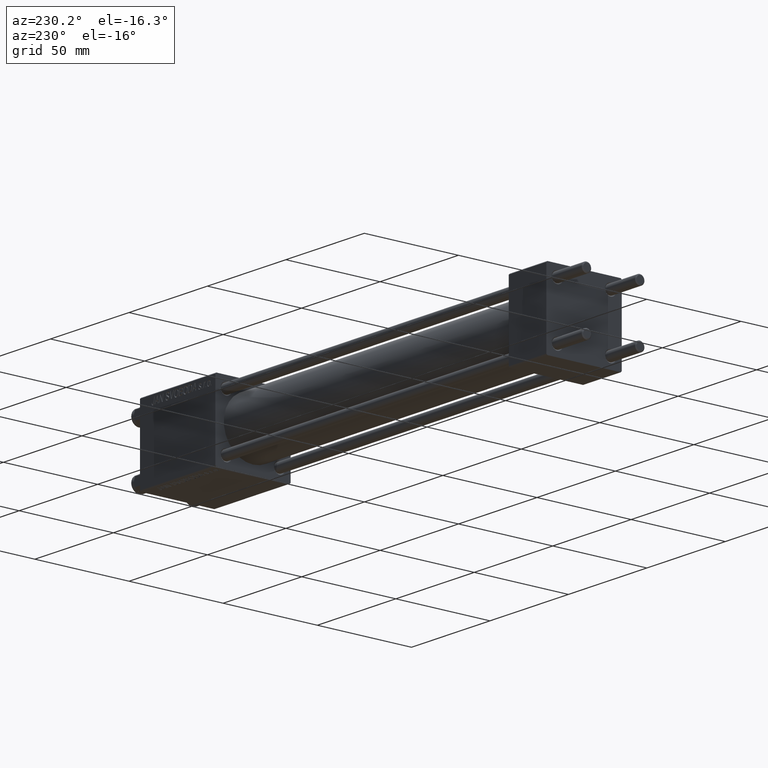
[diagram: clean part render]
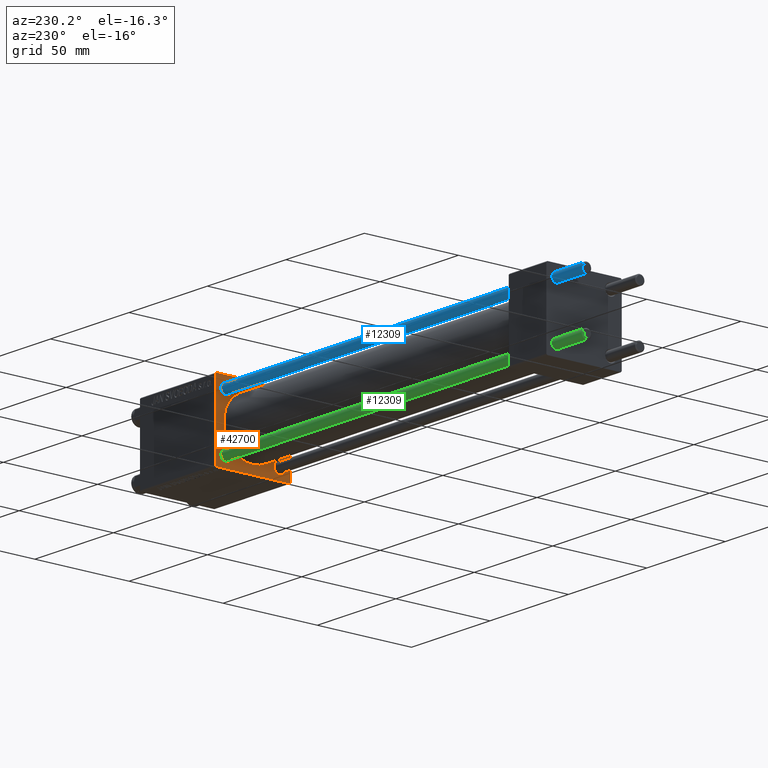
[diagram: same view with three faces highlighted in distinct colors, each labeled with its STEP entity id]
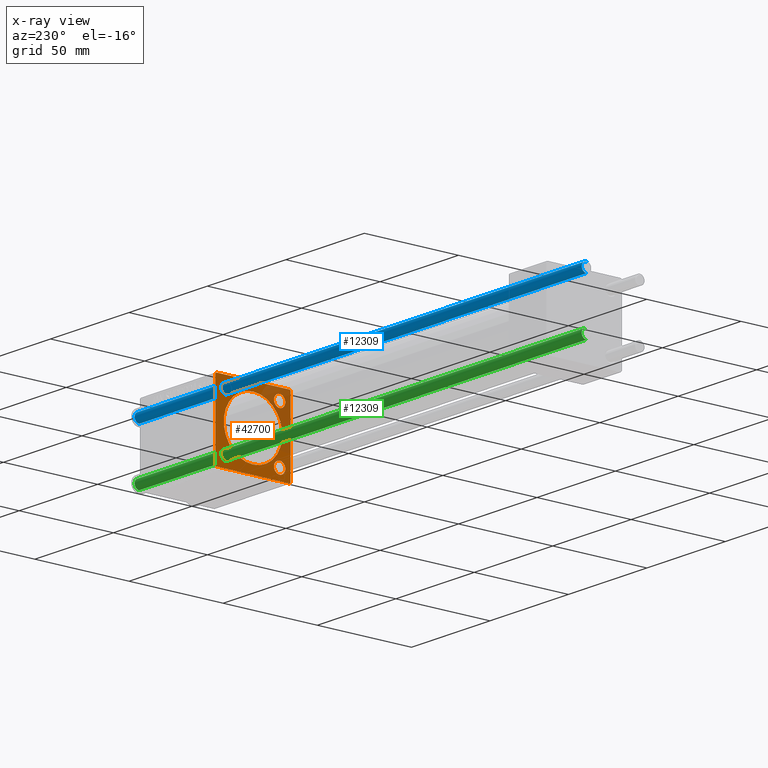
[diagram: x-ray of the same camera — body ghosted, the three highlighted faces saturated]
A machine part, auxiliary view with three faces highlighted in distinct colors.
The next image is the same camera in x-ray (body ghosted, the three faces saturated) — at least one of them is partly hidden behind the body in this view.
Their STEP definitions:

[orange] entity #42700 — the highlighted planar face has unit normal (-1, 0, 0).
#241 = FACE_BOUND ( 'NONE', #48953, .T. ) ;
#822 = AXIS2_PLACEMENT_3D ( 'NONE', #37249, #17123, #36993 ) ;
#1218 = VERTEX_POINT ( 'NONE', #31697 ) ;
#1277 = CARTESIAN_POINT ( 'NONE',  ( 211.0000000000000000, -14.15000000000000036, 11.14999999999999858 ) ) ;
#1498 = EDGE_CURVE ( 'NONE', #9778, #25819, #34802, .T. ) ;
#2190 = DIRECTION ( 'NONE',  ( 0.000000000000000000, 0.000000000000000000, 1.000000000000000000 ) ) ;
#3527 = AXIS2_PLACEMENT_3D ( 'NONE', #48251, #5707, #2190 ) ;
#3549 = VERTEX_POINT ( 'NONE', #24150 ) ;
#3607 = LINE ( 'NONE', #15188, #10791 ) ;
#4021 = FACE_BOUND ( 'NONE', #33837, .T. ) ;
#4215 = CARTESIAN_POINT ( 'NONE',  ( 211.0000000000000000, 14.15000000000000036, -14.15000000000000036 ) ) ;
#4791 = EDGE_CURVE ( 'NONE', #25819, #9778, #40400, .T. ) ;
#4995 = VERTEX_POINT ( 'NONE', #41679 ) ;
#5117 = VERTEX_POINT ( 'NONE', #12453 ) ;
#5204 = DIRECTION ( 'NONE',  ( -0.000000000000000000, 0.7071067811865671127, 0.7071067811865279218 ) ) ;
#5509 = CARTESIAN_POINT ( 'NONE',  ( 211.0000000000000000, 0.000000000000000000, 0.000000000000000000 ) ) ;
#5594 = AXIS2_PLACEMENT_3D ( 'NONE', #48466, #39913, #17513 ) ;
#5680 = LINE ( 'NONE', #39685, #26701 ) ;
#5707 = DIRECTION ( 'NONE',  ( 1.000000000000000000, 0.000000000000000000, 0.000000000000000000 ) ) ;
#6035 = DIRECTION ( 'NONE',  ( 0.000000000000000000, 0.000000000000000000, -1.000000000000000000 ) ) ;
#6157 = VERTEX_POINT ( 'NONE', #34476 ) ;
#6385 = ORIENTED_EDGE ( 'NONE', *, *, #21001, .T. ) ;
#6414 = EDGE_CURVE ( 'NONE', #25331, #1218, #19599, .T. ) ;
#6754 = CARTESIAN_POINT ( 'NONE',  ( 211.0000000000000000, 19.99999999999999645, -20.00000000000000000 ) ) ;
#7328 = EDGE_CURVE ( 'NONE', #35195, #37710, #35683, .T. ) ;
#7490 = ORIENTED_EDGE ( 'NONE', *, *, #7328, .T. ) ;
#7855 = CARTESIAN_POINT ( 'NONE',  ( 211.0000000000000000, 0.000000000000000000, 15.50000000000000000 ) ) ;
#8046 = VERTEX_POINT ( 'NONE', #1277 ) ;
#8045 = DIRECTION ( 'NONE',  ( -0.000000000000000000, 0.000000000000000000, 1.000000000000000000 ) ) ;
#8172 = ORIENTED_EDGE ( 'NONE', *, *, #31081, .T. ) ;
#8949 = EDGE_CURVE ( 'NONE', #23052, #49018, #18055, .T. ) ;
#9138 = CARTESIAN_POINT ( 'NONE',  ( 211.0000000000000000, -20.00000000000000355, 19.50000000000002487 ) ) ;
#9778 = VERTEX_POINT ( 'NONE', #34666 ) ;
#9930 = CARTESIAN_POINT ( 'NONE',  ( 211.0000000000000000, 14.15000000000000036, -11.15000000000002522 ) ) ;
#10111 = CARTESIAN_POINT ( 'NONE',  ( 211.0000000000000000, 14.15000000000000036, 17.15000000000000568 ) ) ;
#10791 = VECTOR ( 'NONE', #30298, 1000.000000000000000 ) ;
#11277 = CARTESIAN_POINT ( 'NONE',  ( 211.0000000000000000, -14.15000000000000036, -17.14999999999997726 ) ) ;
#11469 = VECTOR ( 'NONE', #26162, 1000.000000000000114 ) ;
#11826 = CARTESIAN_POINT ( 'NONE',  ( 211.0000000000000000, 0.000000000000000000, 0.000000000000000000 ) ) ;
#11831 = ORIENTED_EDGE ( 'NONE', *, *, #39362, .T. ) ;
#12357 = VECTOR ( 'NONE', #20183, 1000.000000000000000 ) ;
#12386 = CIRCLE ( 'NONE', #17204, 15.50000000000000000 ) ;
#12453 = CARTESIAN_POINT ( 'NONE',  ( 211.0000000000000000, -14.15000000000000036, 17.15000000000000568 ) ) ;
#12721 = VERTEX_POINT ( 'NONE', #9138 ) ;
#12840 = DIRECTION ( 'NONE',  ( 1.000000000000000000, 0.000000000000000000, 0.000000000000000000 ) ) ;
#13471 = CARTESIAN_POINT ( 'NONE',  ( 211.0000000000000000, -14.15000000000000036, -14.15000000000000036 ) ) ;
#13505 = DIRECTION ( 'NONE',  ( 0.000000000000000000, 0.000000000000000000, 1.000000000000000000 ) ) ;
#13725 = VECTOR ( 'NONE', #18946, 1000.000000000000000 ) ;
#13949 = EDGE_CURVE ( 'NONE', #8046, #5117, #25746, .T. ) ;
#14068 = ORIENTED_EDGE ( 'NONE', *, *, #28299, .T. ) ;
#14823 = DIRECTION ( 'NONE',  ( 0.000000000000000000, 0.000000000000000000, 1.000000000000000000 ) ) ;
#15188 = CARTESIAN_POINT ( 'NONE',  ( 211.0000000000000000, 19.99999999999999645, 20.00000000000000000 ) ) ;
#15612 = FACE_OUTER_BOUND ( 'NONE', #16776, .T. ) ;
#15791 = ORIENTED_EDGE ( 'NONE', *, *, #46874, .T. ) ;
#16033 = ORIENTED_EDGE ( 'NONE', *, *, #30023, .T. ) ;
#16154 = CARTESIAN_POINT ( 'NONE',  ( 211.0000000000000000, -20.00000000000000355, 19.99999999999999645 ) ) ;
#16169 = CARTESIAN_POINT ( 'NONE',  ( 211.0000000000000000, 19.99999999999999645, 19.50000000000000000 ) ) ;
#16500 = VECTOR ( 'NONE', #23132, 1000.000000000000000 ) ;
#16683 = EDGE_CURVE ( 'NONE', #12721, #3549, #38069, .T. ) ;
#16776 = EDGE_LOOP ( 'NONE', ( #8172, #45239, #45324, #15791, #31747, #6385, #42146, #37532 ) ) ;
#17123 = DIRECTION ( 'NONE',  ( 1.000000000000000000, 0.000000000000000000, 0.000000000000000000 ) ) ;
#17204 = AXIS2_PLACEMENT_3D ( 'NONE', #5509, #21812, #32190 ) ;
#17513 = DIRECTION ( 'NONE',  ( 0.000000000000000000, 0.000000000000000000, 1.000000000000000000 ) ) ;
#17616 = CARTESIAN_POINT ( 'NONE',  ( 211.0000000000000000, -19.75000000000055067, -19.74999999999945288 ) ) ;
#18055 = CIRCLE ( 'NONE', #46198, 2.999999999999976463 ) ;
#18946 = DIRECTION ( 'NONE',  ( 0.000000000000000000, 8.673617379884036705E-17, -1.000000000000000000 ) ) ;
#19381 = FACE_BOUND ( 'NONE', #26771, .T. ) ;
#19599 = CIRCLE ( 'NONE', #3527, 3.000000000000004441 ) ;
#19707 = EDGE_CURVE ( 'NONE', #4995, #26430, #20941, .T. ) ;
#20183 = DIRECTION ( 'NONE',  ( 0.000000000000000000, -1.000000000000000000, -8.673617379884035472E-17 ) ) ;
#20880 = DIRECTION ( 'NONE',  ( 0.000000000000000000, 0.000000000000000000, 1.000000000000000000 ) ) ;
#20941 = LINE ( 'NONE', #47387, #25115 ) ;
#21001 = EDGE_CURVE ( 'NONE', #6157, #30556, #40980, .T. ) ;
#21307 = CARTESIAN_POINT ( 'NONE',  ( 211.0000000000000000, 1.898202538678397557E-15, -15.50000000000000000 ) ) ;
#21522 = DIRECTION ( 'NONE',  ( 0.000000000000000000, 0.000000000000000000, 1.000000000000000000 ) ) ;
#21812 = DIRECTION ( 'NONE',  ( 1.000000000000000000, 0.000000000000000000, 0.000000000000000000 ) ) ;
#21866 = CARTESIAN_POINT ( 'NONE',  ( 211.0000000000000000, 19.74999999999999645, 19.74999999999999645 ) ) ;
#22137 = CARTESIAN_POINT ( 'NONE',  ( 211.0000000000000000, 14.15000000000000036, -14.15000000000000036 ) ) ;
#23052 = VERTEX_POINT ( 'NONE', #11277 ) ;
#23132 = DIRECTION ( 'NONE',  ( 0.000000000000000000, -1.000000000000000000, 0.000000000000000000 ) ) ;
#23178 = FACE_BOUND ( 'NONE', #33088, .T. ) ;
#23298 = ORIENTED_EDGE ( 'NONE', *, *, #1498, .T. ) ;
#23743 = EDGE_CURVE ( 'NONE', #6157, #42839, #24707, .T. ) ;
#24150 = CARTESIAN_POINT ( 'NONE',  ( 211.0000000000000000, -20.00000000000000000, -19.49999999999999645 ) ) ;
#24471 = AXIS2_PLACEMENT_3D ( 'NONE', #47325, #12840, #20880 ) ;
#24682 = ORIENTED_EDGE ( 'NONE', *, *, #13949, .T. ) ;
#24707 = LINE ( 'NONE', #47124, #12357 ) ;
#24897 = AXIS2_PLACEMENT_3D ( 'NONE', #11826, #27194, #8045 ) ;
#25051 = ORIENTED_EDGE ( 'NONE', *, *, #4791, .T. ) ;
#25115 = VECTOR ( 'NONE', #40569, 1000.000000000000114 ) ;
#25331 = VERTEX_POINT ( 'NONE', #10111 ) ;
#25474 = ORIENTED_EDGE ( 'NONE', *, *, #6414, .T. ) ;
#25746 = CIRCLE ( 'NONE', #822, 3.000000000000004441 ) ;
#25819 = VERTEX_POINT ( 'NONE', #9930 ) ;
#25958 = AXIS2_PLACEMENT_3D ( 'NONE', #22137, #45272, #14823 ) ;
#26108 = CIRCLE ( 'NONE', #24471, 3.000000000000004441 ) ;
#26162 = DIRECTION ( 'NONE',  ( 0.000000000000000000, 0.7071067811865474617, -0.7071067811865474617 ) ) ;
#26430 = VERTEX_POINT ( 'NONE', #31237 ) ;
#26701 = VECTOR ( 'NONE', #5204, 1000.000000000000000 ) ;
#26771 = EDGE_LOOP ( 'NONE', ( #25051, #23298 ) ) ;
#27194 = DIRECTION ( 'NONE',  ( -1.000000000000000000, 0.000000000000000000, -0.000000000000000000 ) ) ;
#27918 = EDGE_CURVE ( 'NONE', #30556, #4995, #3607, .T. ) ;
#28299 = EDGE_CURVE ( 'NONE', #37710, #35195, #12386, .T. ) ;
#29210 = CARTESIAN_POINT ( 'NONE',  ( 211.0000000000000000, -19.50000000000002487, -20.00000000000000000 ) ) ;
#29727 = CIRCLE ( 'NONE', #5594, 3.000000000000004441 ) ;
#30023 = EDGE_CURVE ( 'NONE', #5117, #8046, #26108, .T. ) ;
#30298 = DIRECTION ( 'NONE',  ( 0.000000000000000000, 0.000000000000000000, -1.000000000000000000 ) ) ;
#30556 = VERTEX_POINT ( 'NONE', #16169 ) ;
#30655 = DIRECTION ( 'NONE',  ( 1.000000000000000000, 0.000000000000000000, 0.000000000000000000 ) ) ;
#30962 = PLANE ( 'NONE',  #24897 ) ;
#31081 = EDGE_CURVE ( 'NONE', #26430, #42637, #41492, .T. ) ;
#31237 = CARTESIAN_POINT ( 'NONE',  ( 211.0000000000000000, 19.49999999999999645, -20.00000000000000000 ) ) ;
#31697 = CARTESIAN_POINT ( 'NONE',  ( 211.0000000000000000, 14.15000000000000036, 11.14999999999999858 ) ) ;
#31747 = ORIENTED_EDGE ( 'NONE', *, *, #23743, .F. ) ;
#32190 = DIRECTION ( 'NONE',  ( 0.000000000000000000, 0.000000000000000000, -1.000000000000000000 ) ) ;
#32963 = DIRECTION ( 'NONE',  ( 1.000000000000000000, 0.000000000000000000, 0.000000000000000000 ) ) ;
#33088 = EDGE_LOOP ( 'NONE', ( #16033, #24682 ) ) ;
#33398 = EDGE_LOOP ( 'NONE', ( #11831, #48079 ) ) ;
#33837 = EDGE_LOOP ( 'NONE', ( #25474, #45676 ) ) ;
#34476 = CARTESIAN_POINT ( 'NONE',  ( 211.0000000000000000, 19.49999999999999645, 20.00000000000000000 ) ) ;
#34666 = CARTESIAN_POINT ( 'NONE',  ( 211.0000000000000000, 14.15000000000000036, -17.14999999999997726 ) ) ;
#34737 = FACE_BOUND ( 'NONE', #33398, .T. ) ;
#34802 = CIRCLE ( 'NONE', #41217, 2.999999999999976463 ) ;
#35195 = VERTEX_POINT ( 'NONE', #21307 ) ;
#35683 = CIRCLE ( 'NONE', #38144, 15.50000000000000000 ) ;
#36749 = LINE ( 'NONE', #17616, #48856 ) ;
#36870 = DIRECTION ( 'NONE',  ( 1.000000000000000000, 0.000000000000000000, 0.000000000000000000 ) ) ;
#36993 = DIRECTION ( 'NONE',  ( 0.000000000000000000, 0.000000000000000000, 1.000000000000000000 ) ) ;
#37249 = CARTESIAN_POINT ( 'NONE',  ( 211.0000000000000000, -14.15000000000000036, 14.15000000000000036 ) ) ;
#37532 = ORIENTED_EDGE ( 'NONE', *, *, #19707, .T. ) ;
#37710 = VERTEX_POINT ( 'NONE', #7855 ) ;
#38069 = LINE ( 'NONE', #16154, #13725 ) ;
#38144 = AXIS2_PLACEMENT_3D ( 'NONE', #44809, #32963, #6035 ) ;
#39193 = DIRECTION ( 'NONE',  ( 0.000000000000000000, 0.000000000000000000, 1.000000000000000000 ) ) ;
#39272 = DIRECTION ( 'NONE',  ( 1.000000000000000000, 0.000000000000000000, 0.000000000000000000 ) ) ;
#39362 = EDGE_CURVE ( 'NONE', #49018, #23052, #44798, .T. ) ;
#39685 = CARTESIAN_POINT ( 'NONE',  ( 211.0000000000000000, -19.74999999999945999, 19.75000000000055067 ) ) ;
#39727 = CARTESIAN_POINT ( 'NONE',  ( 211.0000000000000000, -19.50000000000000355, 19.99999999999999645 ) ) ;
#39913 = DIRECTION ( 'NONE',  ( 1.000000000000000000, 0.000000000000000000, 0.000000000000000000 ) ) ;
#40400 = CIRCLE ( 'NONE', #25958, 2.999999999999976463 ) ;
#40569 = DIRECTION ( 'NONE',  ( -0.000000000000000000, -0.7071067811865474617, -0.7071067811865474617 ) ) ;
#40980 = LINE ( 'NONE', #21866, #11469 ) ;
#41217 = AXIS2_PLACEMENT_3D ( 'NONE', #4215, #30655, #39193 ) ;
#41492 = LINE ( 'NONE', #6754, #16500 ) ;
#41679 = CARTESIAN_POINT ( 'NONE',  ( 211.0000000000000000, 19.99999999999999645, -19.50000000000000000 ) ) ;
#41753 = EDGE_CURVE ( 'NONE', #42637, #3549, #36749, .T. ) ;
#42146 = ORIENTED_EDGE ( 'NONE', *, *, #27918, .T. ) ;
#42637 = VERTEX_POINT ( 'NONE', #29210 ) ;
#42700 = ADVANCED_FACE ( 'NONE', ( #23178, #4021, #19381, #34737, #241, #15612 ), #30962, .T. ) ;
#42839 = VERTEX_POINT ( 'NONE', #39727 ) ;
#42995 = CARTESIAN_POINT ( 'NONE',  ( 211.0000000000000000, -14.15000000000000036, -11.15000000000002522 ) ) ;
#43166 = EDGE_CURVE ( 'NONE', #1218, #25331, #29727, .T. ) ;
#43284 = AXIS2_PLACEMENT_3D ( 'NONE', #47985, #39272, #13505 ) ;
#44798 = CIRCLE ( 'NONE', #43284, 2.999999999999976463 ) ;
#44809 = CARTESIAN_POINT ( 'NONE',  ( 211.0000000000000000, 0.000000000000000000, 0.000000000000000000 ) ) ;
#45239 = ORIENTED_EDGE ( 'NONE', *, *, #41753, .T. ) ;
#45272 = DIRECTION ( 'NONE',  ( 1.000000000000000000, 0.000000000000000000, 0.000000000000000000 ) ) ;
#45324 = ORIENTED_EDGE ( 'NONE', *, *, #16683, .F. ) ;
#45676 = ORIENTED_EDGE ( 'NONE', *, *, #43166, .T. ) ;
#46198 = AXIS2_PLACEMENT_3D ( 'NONE', #13471, #36870, #21522 ) ;
#46874 = EDGE_CURVE ( 'NONE', #12721, #42839, #5680, .T. ) ;
#47124 = CARTESIAN_POINT ( 'NONE',  ( 211.0000000000000000, 19.99999999999999645, 20.00000000000000000 ) ) ;
#47325 = CARTESIAN_POINT ( 'NONE',  ( 211.0000000000000000, -14.15000000000000036, 14.15000000000000036 ) ) ;
#47387 = CARTESIAN_POINT ( 'NONE',  ( 211.0000000000000000, 19.74999999999999645, -19.74999999999999645 ) ) ;
#47985 = CARTESIAN_POINT ( 'NONE',  ( 211.0000000000000000, -14.15000000000000036, -14.15000000000000036 ) ) ;
#48079 = ORIENTED_EDGE ( 'NONE', *, *, #8949, .T. ) ;
#48251 = CARTESIAN_POINT ( 'NONE',  ( 211.0000000000000000, 14.15000000000000036, 14.15000000000000036 ) ) ;
#48466 = CARTESIAN_POINT ( 'NONE',  ( 211.0000000000000000, 14.15000000000000036, 14.15000000000000036 ) ) ;
#48583 = DIRECTION ( 'NONE',  ( 0.000000000000000000, -0.7071067811865279218, 0.7071067811865672237 ) ) ;
#48856 = VECTOR ( 'NONE', #48583, 1000.000000000000000 ) ;
#48953 = EDGE_LOOP ( 'NONE', ( #14068, #7490 ) ) ;
#49018 = VERTEX_POINT ( 'NONE', #42995 ) ;

[blue] entity #12309 — the highlighted cylindrical surface (edge-blend (fillet) strip) has radius 2.5 mm, axis along (-1, -0, -0).
#621 = VERTEX_POINT ( 'NONE', #40967 ) ;
#1771 = AXIS2_PLACEMENT_3D ( 'NONE', #11341, #30223, #34502 ) ;
#2359 = DIRECTION ( 'NONE',  ( -0.000000000000000000, -0.000000000000000000, -1.000000000000000000 ) ) ;
#3408 = CIRCLE ( 'NONE', #1771, 2.500000000000000000 ) ;
#5148 = CARTESIAN_POINT ( 'NONE',  ( -2.500000000000000000, 0.000000000000000000, 285.4999999999999432 ) ) ;
#5395 = LINE ( 'NONE', #35871, #42263 ) ;
#8809 = ORIENTED_EDGE ( 'NONE', *, *, #23359, .F. ) ;
#9440 = CARTESIAN_POINT ( 'NONE',  ( 0.000000000000000000, 0.000000000000000000, 286.0000000000000000 ) ) ;
#11341 = CARTESIAN_POINT ( 'NONE',  ( 0.000000000000000000, 0.000000000000000000, 285.4999999999999432 ) ) ;
#12309 = ADVANCED_FACE ( 'NONE', ( #30873 ), #15036, .T. ) ;
#13760 = DIRECTION ( 'NONE',  ( 1.000000000000000000, 0.000000000000000000, 0.000000000000000000 ) ) ;
#15036 = CYLINDRICAL_SURFACE ( 'NONE', #31021, 2.500000000000000000 ) ;
#16986 = DIRECTION ( 'NONE',  ( -0.000000000000000000, -0.000000000000000000, -1.000000000000000000 ) ) ;
#17291 = CARTESIAN_POINT ( 'NONE',  ( 0.000000000000000000, 0.000000000000000000, 0.4999999999999449329 ) ) ;
#19023 = CARTESIAN_POINT ( 'NONE',  ( -2.500000000000000000, 0.000000000000000000, 286.0000000000000000 ) ) ;
#19431 = EDGE_CURVE ( 'NONE', #23522, #30827, #31510, .T. ) ;
#20126 = EDGE_CURVE ( 'NONE', #21430, #621, #3408, .T. ) ;
#21054 = DIRECTION ( 'NONE',  ( -0.000000000000000000, -0.000000000000000000, 1.000000000000000000 ) ) ;
#21430 = VERTEX_POINT ( 'NONE', #5148 ) ;
#23359 = EDGE_CURVE ( 'NONE', #21430, #30827, #30347, .T. ) ;
#23522 = VERTEX_POINT ( 'NONE', #28290 ) ;
#28290 = CARTESIAN_POINT ( 'NONE',  ( 2.500000000000000000, 3.061616997868383141E-16, 0.4999999999999449329 ) ) ;
#28319 = DIRECTION ( 'NONE',  ( -1.000000000000000000, 0.000000000000000000, 0.000000000000000000 ) ) ;
#28760 = EDGE_LOOP ( 'NONE', ( #41001, #45307, #48458, #8809 ) ) ;
#30223 = DIRECTION ( 'NONE',  ( 0.000000000000000000, 0.000000000000000000, -1.000000000000000000 ) ) ;
#30347 = LINE ( 'NONE', #19023, #45318 ) ;
#30827 = VERTEX_POINT ( 'NONE', #34748 ) ;
#30873 = FACE_OUTER_BOUND ( 'NONE', #28760, .T. ) ;
#31021 = AXIS2_PLACEMENT_3D ( 'NONE', #9440, #16986, #28319 ) ;
#31510 = CIRCLE ( 'NONE', #44362, 2.500000000000000000 ) ;
#32225 = EDGE_CURVE ( 'NONE', #621, #23522, #5395, .T. ) ;
#34378 = DIRECTION ( 'NONE',  ( -0.000000000000000000, -0.000000000000000000, -1.000000000000000000 ) ) ;
#34502 = DIRECTION ( 'NONE',  ( 1.000000000000000000, 0.000000000000000000, 0.000000000000000000 ) ) ;
#34748 = CARTESIAN_POINT ( 'NONE',  ( -2.500000000000000000, 0.000000000000000000, 0.4999999999999449329 ) ) ;
#35871 = CARTESIAN_POINT ( 'NONE',  ( 2.500000000000000000, 3.061616997868383141E-16, 286.0000000000000000 ) ) ;
#40967 = CARTESIAN_POINT ( 'NONE',  ( 2.500000000000000000, 3.061616997868383141E-16, 285.4999999999999432 ) ) ;
#41001 = ORIENTED_EDGE ( 'NONE', *, *, #20126, .T. ) ;
#42263 = VECTOR ( 'NONE', #2359, 1000.000000000000000 ) ;
#44362 = AXIS2_PLACEMENT_3D ( 'NONE', #17291, #21054, #13760 ) ;
#45307 = ORIENTED_EDGE ( 'NONE', *, *, #32225, .T. ) ;
#45318 = VECTOR ( 'NONE', #34378, 1000.000000000000000 ) ;
#48458 = ORIENTED_EDGE ( 'NONE', *, *, #19431, .T. ) ;

[green] entity #12309 — the highlighted cylindrical surface (edge-blend (fillet) strip) has radius 2.5 mm, axis along (1, 0, -0).
#621 = VERTEX_POINT ( 'NONE', #40967 ) ;
#1771 = AXIS2_PLACEMENT_3D ( 'NONE', #11341, #30223, #34502 ) ;
#2359 = DIRECTION ( 'NONE',  ( -0.000000000000000000, -0.000000000000000000, -1.000000000000000000 ) ) ;
#3408 = CIRCLE ( 'NONE', #1771, 2.500000000000000000 ) ;
#5148 = CARTESIAN_POINT ( 'NONE',  ( -2.500000000000000000, 0.000000000000000000, 285.4999999999999432 ) ) ;
#5395 = LINE ( 'NONE', #35871, #42263 ) ;
#8809 = ORIENTED_EDGE ( 'NONE', *, *, #23359, .F. ) ;
#9440 = CARTESIAN_POINT ( 'NONE',  ( 0.000000000000000000, 0.000000000000000000, 286.0000000000000000 ) ) ;
#11341 = CARTESIAN_POINT ( 'NONE',  ( 0.000000000000000000, 0.000000000000000000, 285.4999999999999432 ) ) ;
#12309 = ADVANCED_FACE ( 'NONE', ( #30873 ), #15036, .T. ) ;
#13760 = DIRECTION ( 'NONE',  ( 1.000000000000000000, 0.000000000000000000, 0.000000000000000000 ) ) ;
#15036 = CYLINDRICAL_SURFACE ( 'NONE', #31021, 2.500000000000000000 ) ;
#16986 = DIRECTION ( 'NONE',  ( -0.000000000000000000, -0.000000000000000000, -1.000000000000000000 ) ) ;
#17291 = CARTESIAN_POINT ( 'NONE',  ( 0.000000000000000000, 0.000000000000000000, 0.4999999999999449329 ) ) ;
#19023 = CARTESIAN_POINT ( 'NONE',  ( -2.500000000000000000, 0.000000000000000000, 286.0000000000000000 ) ) ;
#19431 = EDGE_CURVE ( 'NONE', #23522, #30827, #31510, .T. ) ;
#20126 = EDGE_CURVE ( 'NONE', #21430, #621, #3408, .T. ) ;
#21054 = DIRECTION ( 'NONE',  ( -0.000000000000000000, -0.000000000000000000, 1.000000000000000000 ) ) ;
#21430 = VERTEX_POINT ( 'NONE', #5148 ) ;
#23359 = EDGE_CURVE ( 'NONE', #21430, #30827, #30347, .T. ) ;
#23522 = VERTEX_POINT ( 'NONE', #28290 ) ;
#28290 = CARTESIAN_POINT ( 'NONE',  ( 2.500000000000000000, 3.061616997868383141E-16, 0.4999999999999449329 ) ) ;
#28319 = DIRECTION ( 'NONE',  ( -1.000000000000000000, 0.000000000000000000, 0.000000000000000000 ) ) ;
#28760 = EDGE_LOOP ( 'NONE', ( #41001, #45307, #48458, #8809 ) ) ;
#30223 = DIRECTION ( 'NONE',  ( 0.000000000000000000, 0.000000000000000000, -1.000000000000000000 ) ) ;
#30347 = LINE ( 'NONE', #19023, #45318 ) ;
#30827 = VERTEX_POINT ( 'NONE', #34748 ) ;
#30873 = FACE_OUTER_BOUND ( 'NONE', #28760, .T. ) ;
#31021 = AXIS2_PLACEMENT_3D ( 'NONE', #9440, #16986, #28319 ) ;
#31510 = CIRCLE ( 'NONE', #44362, 2.500000000000000000 ) ;
#32225 = EDGE_CURVE ( 'NONE', #621, #23522, #5395, .T. ) ;
#34378 = DIRECTION ( 'NONE',  ( -0.000000000000000000, -0.000000000000000000, -1.000000000000000000 ) ) ;
#34502 = DIRECTION ( 'NONE',  ( 1.000000000000000000, 0.000000000000000000, 0.000000000000000000 ) ) ;
#34748 = CARTESIAN_POINT ( 'NONE',  ( -2.500000000000000000, 0.000000000000000000, 0.4999999999999449329 ) ) ;
#35871 = CARTESIAN_POINT ( 'NONE',  ( 2.500000000000000000, 3.061616997868383141E-16, 286.0000000000000000 ) ) ;
#40967 = CARTESIAN_POINT ( 'NONE',  ( 2.500000000000000000, 3.061616997868383141E-16, 285.4999999999999432 ) ) ;
#41001 = ORIENTED_EDGE ( 'NONE', *, *, #20126, .T. ) ;
#42263 = VECTOR ( 'NONE', #2359, 1000.000000000000000 ) ;
#44362 = AXIS2_PLACEMENT_3D ( 'NONE', #17291, #21054, #13760 ) ;
#45307 = ORIENTED_EDGE ( 'NONE', *, *, #32225, .T. ) ;
#45318 = VECTOR ( 'NONE', #34378, 1000.000000000000000 ) ;
#48458 = ORIENTED_EDGE ( 'NONE', *, *, #19431, .T. ) ;